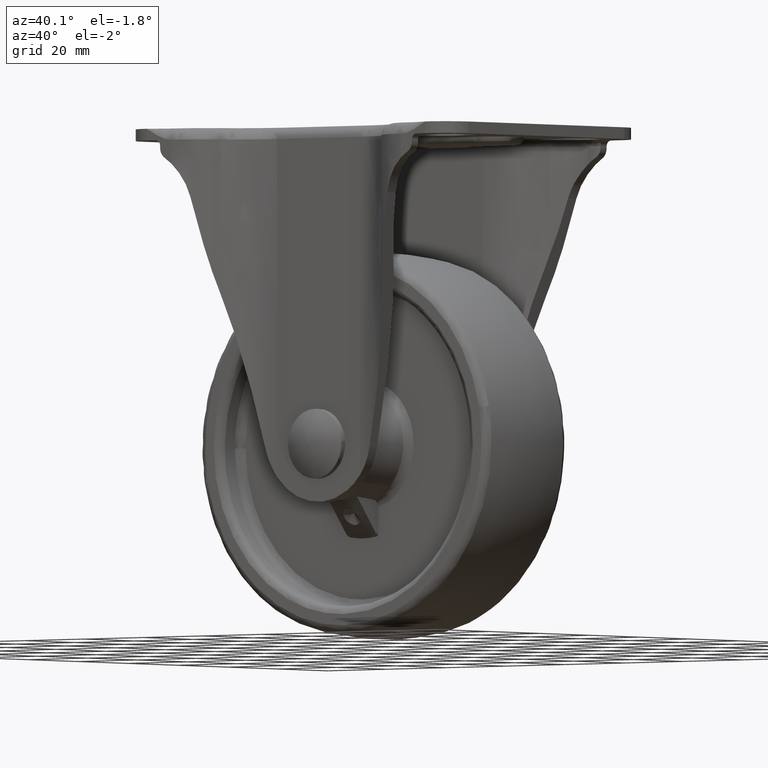
[diagram: clean part render]
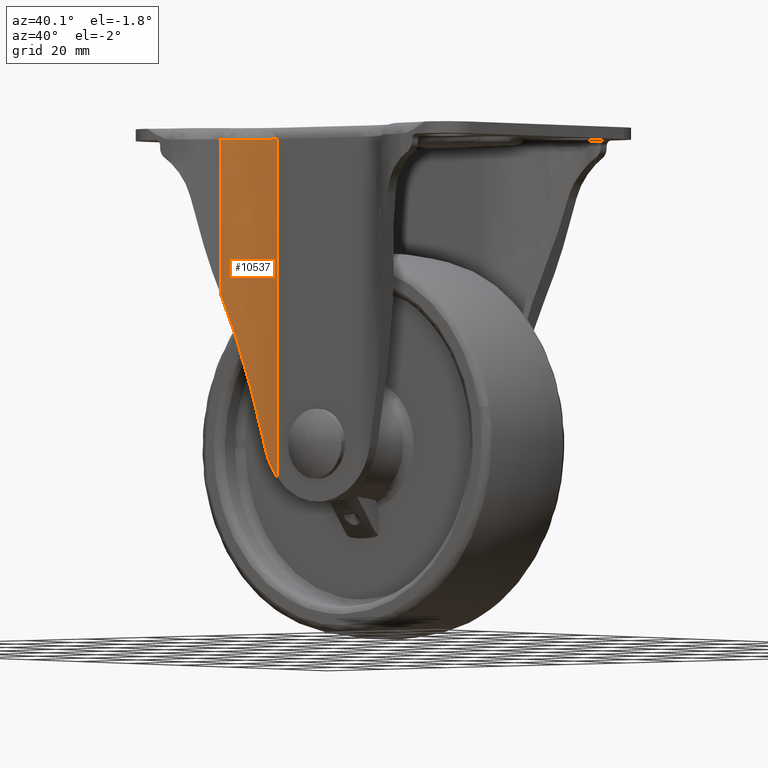
[diagram: same view with one face highlighted and labeled with its STEP entity id]
A machine part, auxiliary view. The second image highlights one B-rep face of the part: STEP entity #10537.
In plain terms, the highlighted face is a freeform B-spline surface patch.
Its self-contained STEP definition (entity closure, byte-faithful):
#9167=CARTESIAN_POINT('',(-13.999994973451740,-26.0,-8.313713548463049));
#9168=VERTEX_POINT('',#9167);
#9169=CARTESIAN_POINT('',(-17.500308000000000,-26.387574054454749,-1.211790999999920));
#9170=VERTEX_POINT('',#9169);
#9171=CARTESIAN_POINT('',(-13.999994973451740,-26.0,-8.313713548463049));
#9172=CARTESIAN_POINT('',(-14.418019301313301,-25.999999868674571,-7.796435202654423));
#9173=CARTESIAN_POINT('',(-14.806976342628740,-26.016296811593350,-7.256664478478131));
#9174=CARTESIAN_POINT('',(-15.256433490353160,-26.049153673351391,-6.553484510951349));
#9175=CARTESIAN_POINT('',(-15.344482594822070,-26.056353764802751,-6.411421042649844));
#9176=CARTESIAN_POINT('',(-15.516864095779130,-26.071829608023549,-6.124413422637730));
#9177=CARTESIAN_POINT('',(-15.601248242875579,-26.080112603261409,-5.979364554002242));
#9178=CARTESIAN_POINT('',(-15.847454421545001,-26.106159847258219,-5.542249003279167));
#9179=CARTESIAN_POINT('',(-16.002790066349249,-26.125153337899729,-5.247488100866914));
#9180=CARTESIAN_POINT('',(-16.442971840570969,-26.184830479364731,-4.353242204247074));
#9181=CARTESIAN_POINT('',(-16.702078315596289,-26.228150086342598,-3.743823713329884));
#9182=CARTESIAN_POINT('',(-17.152502004523871,-26.311972461968850,-2.498204427213470));
#9183=CARTESIAN_POINT('',(-17.343821232016332,-26.352489699993850,-1.862005342874189));
#9184=CARTESIAN_POINT('',(-17.500307999999631,-26.387574054454621,-1.211790999999765));
#9185=B_SPLINE_CURVE_WITH_KNOTS('',3,(#9171,#9172,#9173,#9174,#9175,#9176,#9177,#9178,#9179,#9180,#9181,#9182,#9183,#9184),.UNSPECIFIED.,.F.,.U.,(4,2,2,2,2,2,4),(0.0,0.250000000000000,0.312500000000000,0.375000000000000,0.500000000000000,0.750000000000000,1.0),.UNSPECIFIED.);
#9186=EDGE_CURVE('',#9168,#9170,#9185,.T.);
#9251=CARTESIAN_POINT('',(-27.183154205782301,-32.933333566660501,39.021128460912202));
#9252=VERTEX_POINT('',#9251);
#9253=CARTESIAN_POINT('',(-17.500308000000000,-26.387574054454749,-1.211790999999920));
#9254=CARTESIAN_POINT('',(-23.625846166224640,-27.760920536438217,24.240258785659929));
#9255=CARTESIAN_POINT('',(-27.183154394398748,-32.933333566660501,39.021129244627033));
#9263=(BOUNDED_CURVE()B_SPLINE_CURVE(2,(#9253,#9254,#9255),.UNSPECIFIED.,.F.,.U.)CURVE()GEOMETRIC_REPRESENTATION_ITEM()QUASI_UNIFORM_CURVE()RATIONAL_B_SPLINE_CURVE((1.0,0.930912018213927,1.0))REPRESENTATION_ITEM(''));
#9264=EDGE_CURVE('',#9170,#9252,#9263,.T.);
#9605=CARTESIAN_POINT('',(-27.183154205782301,-32.933333566660501,79.000008000000093));
#9606=VERTEX_POINT('',#9605);
#9607=CARTESIAN_POINT('',(-27.183154205782301,-32.933333566660501,39.021128460912202));
#9608=CARTESIAN_POINT('',(-27.183154205782301,-32.933333566660501,79.000008000000093));
#9609=QUASI_UNIFORM_CURVE('',1,(#9607,#9608),.UNSPECIFIED.,.F.,.U.);
#9610=EDGE_CURVE('',#9252,#9606,#9609,.T.);
#10482=CARTESIAN_POINT('',(-13.999994973451740,-26.000000000000799,79.000008000000093));
#10483=VERTEX_POINT('',#10482);
#10489=CARTESIAN_POINT('',(-13.999994973451740,-26.0,-8.313713548463049));
#10490=CARTESIAN_POINT('',(-13.999994973451740,-26.000000000000799,79.000008000000093));
#10491=QUASI_UNIFORM_CURVE('',1,(#10489,#10490),.UNSPECIFIED.,.F.,.U.);
#10492=EDGE_CURVE('',#9168,#10483,#10491,.T.);
#10504=CARTESIAN_POINT('',(-27.494260432243099,-33.403202027103447,-10.496556587174631));
#10505=CARTESIAN_POINT('',(-27.494260432243099,-33.403202027103447,81.237422114679475));
#10506=CARTESIAN_POINT('',(-22.514533557140691,-25.586601992308079,-10.496556587174631));
#10507=CARTESIAN_POINT('',(-22.514533557140691,-25.586601992308079,81.237422114679489));
#10508=CARTESIAN_POINT('',(-13.256486881050147,-26.017284703719788,-10.496556587174632));
#10509=CARTESIAN_POINT('',(-13.256486881050147,-26.017284703719788,81.237422114679447));
#10517=(BOUNDED_SURFACE()B_SPLINE_SURFACE(1,2,((#10504,#10506,#10508),(#10505,#10507,#10509)),.UNSPECIFIED.,.F.,.F.,.U.)B_SPLINE_SURFACE_WITH_KNOTS((2,2),(3,3),(0.0,91.733978701854113),(0.0,17.197593524807061),.UNSPECIFIED.)GEOMETRIC_REPRESENTATION_ITEM()RATIONAL_B_SPLINE_SURFACE(((1.0,0.861592665858829,0.991423490601896),(1.0,0.861592665858829,0.991423490601896)))REPRESENTATION_ITEM('')SURFACE());
#10518=ORIENTED_EDGE('',*,*,#10492,.T.);
#10519=CARTESIAN_POINT('',(-13.999994973451750,-26.000000000000789,79.000008000000093));
#10520=CARTESIAN_POINT('',(-22.414777592670731,-25.999997356418856,79.000008000000093));
#10521=CARTESIAN_POINT('',(-27.183154333831901,-32.933333478594840,79.000008000000093));
#10529=(BOUNDED_CURVE()B_SPLINE_CURVE(2,(#10519,#10520,#10521),.UNSPECIFIED.,.F.,.U.)CURVE()GEOMETRIC_REPRESENTATION_ITEM()QUASI_UNIFORM_CURVE()RATIONAL_B_SPLINE_CURVE((1.0,0.885061127475714,1.0))REPRESENTATION_ITEM(''));
#10530=EDGE_CURVE('',#10483,#9606,#10529,.T.);
#10531=ORIENTED_EDGE('',*,*,#10530,.T.);
#10532=ORIENTED_EDGE('',*,*,#9610,.F.);
#10533=ORIENTED_EDGE('',*,*,#9264,.F.);
#10534=ORIENTED_EDGE('',*,*,#9186,.F.);
#10535=EDGE_LOOP('',(#10518,#10531,#10532,#10533,#10534));
#10536=FACE_OUTER_BOUND('',#10535,.T.);
#10537=ADVANCED_FACE('',(#10536),#10517,.F.);